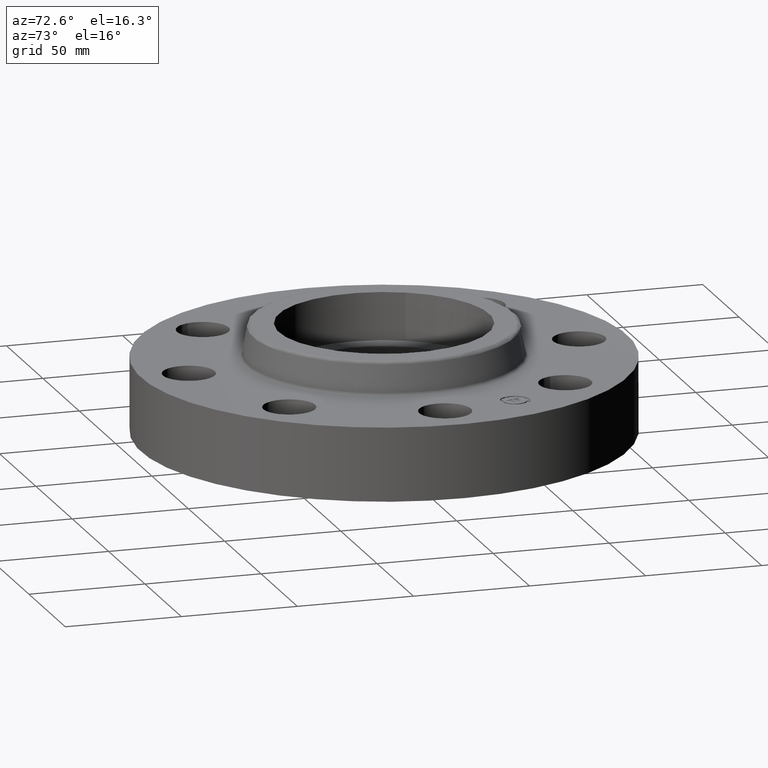
[diagram: clean part render]
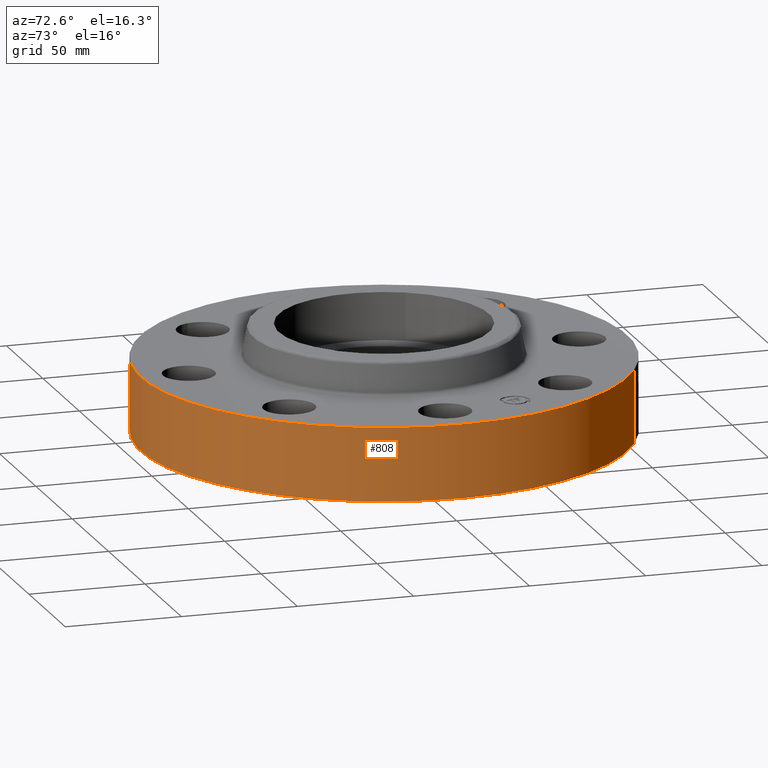
[diagram: same view with one face highlighted and labeled with its STEP entity id]
A machine part, auxiliary view. The second image highlights one B-rep face of the part: STEP entity #808.
In plain terms, the highlighted cylindrical surface (partial cylindrical patch) has radius 104.775 mm, axis along (0, 0, -1).
Its self-contained STEP definition (entity closure, byte-faithful):
#517=AXIS2_PLACEMENT_3D('Circle Axis2P3D',#515,#516,$) ;
#795=AXIS2_PLACEMENT_3D('Cylinder Axis2P3D',#792,#793,#794) ;
#799=AXIS2_PLACEMENT_3D('Circle Axis2P3D',#797,#798,$) ;
#510=CARTESIAN_POINT('Vertex',(-1.97763034678,-3.62002806781,0.)) ;
#512=CARTESIAN_POINT('Vertex',(1.97763034678,3.62002806783,0.)) ;
#515=CARTESIAN_POINT('Axis2P3D Location',(-1.1189649382E-015,9.99963017027E-012,0.)) ;
#747=CARTESIAN_POINT('Line Origine',(-1.97763034675,-3.62002806781,0.625000000006)) ;
#751=CARTESIAN_POINT('Vertex',(-1.97763034675,-3.62002806781,1.25000000004)) ;
#770=CARTESIAN_POINT('Vertex',(1.97763034678,3.62002806783,1.25000000001)) ;
#773=CARTESIAN_POINT('Line Origine',(1.97763034675,3.62002806781,0.625000000006)) ;
#792=CARTESIAN_POINT('Axis2P3D Location',(0.,0.,0.780000000003)) ;
#797=CARTESIAN_POINT('Axis2P3D Location',(0.,0.,1.25000000004)) ;
#516=DIRECTION('Axis2P3D Direction',(0.,0.,-0.0393700787402)) ;
#748=DIRECTION('Vector Direction',(0.,0.,-0.0393700787402)) ;
#774=DIRECTION('Vector Direction',(0.,0.,-0.0393700787402)) ;
#793=DIRECTION('Axis2P3D Direction',(0.,0.,-0.0393700787402)) ;
#794=DIRECTION('Axis2P3D XDirection',(0.0188750212049,0.0345504945626,0.)) ;
#798=DIRECTION('Axis2P3D Direction',(0.,0.,-0.0393700787402)) ;
#749=VECTOR('Line Direction',#748,0.0393700787402) ;
#775=VECTOR('Line Direction',#774,0.0393700787402) ;
#803=ORIENTED_EDGE('',*,*,#519,.F.) ;
#804=ORIENTED_EDGE('',*,*,#777,.T.) ;
#805=ORIENTED_EDGE('',*,*,#801,.T.) ;
#806=ORIENTED_EDGE('',*,*,#753,.F.) ;
#808=ADVANCED_FACE('PartBody',(#807),#796,.T.) ;
#518=CIRCLE('generated circle',#517,4.12500000004) ;
#800=CIRCLE('generated circle',#799,4.12500000002) ;
#796=CYLINDRICAL_SURFACE('generated cylinder',#795,4.12500000002) ;
#519=EDGE_CURVE('',#513,#511,#518,.T.) ;
#753=EDGE_CURVE('',#511,#752,#750,.F.) ;
#777=EDGE_CURVE('',#513,#771,#776,.F.) ;
#801=EDGE_CURVE('',#771,#752,#800,.T.) ;
#802=EDGE_LOOP('',(#803,#804,#805,#806)) ;
#807=FACE_OUTER_BOUND('',#802,.T.) ;
#750=LINE('Line',#747,#749) ;
#776=LINE('Line',#773,#775) ;
#511=VERTEX_POINT('',#510) ;
#513=VERTEX_POINT('',#512) ;
#752=VERTEX_POINT('',#751) ;
#771=VERTEX_POINT('',#770) ;